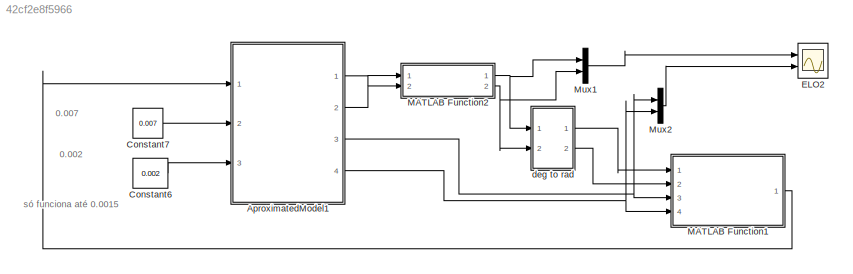
MODEL slx_42cf2e8f5966
KIND model
CONFIG AbsTol = auto
CONFIG EnableMultiTasking = off
CONFIG FixedStep = auto
CONFIG MaxStep = 0.001
CONFIG MinStep = auto
CONFIG RelTol = 1e-3
CONFIG SampleTimeConstraint = Unconstrained
CONFIG Solver = VariableStepAuto
CONFIG SolverName = VariableStepAuto
CONFIG StartTime = 0.0
CONFIG StopTime = 1
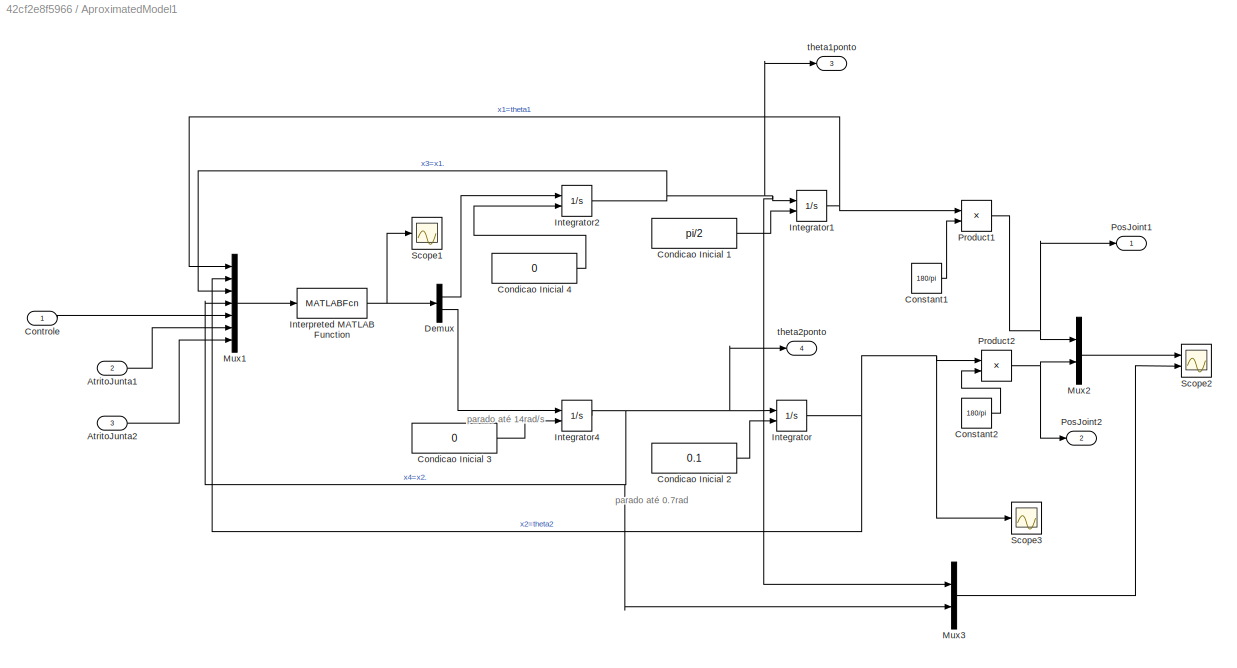
BLOCK [SubSystem] AproximatedModel1
  Ports = [3, 4]
  RequestExecContextInheritance = off
  Variant = off
BLOCK [Inport] AproximatedModel1/AtritoJunta1
  IconDisplay = Port number
  Port = 2
BLOCK [Inport] AproximatedModel1/AtritoJunta2
  IconDisplay = Port number
  Port = 3
BLOCK [Constant] AproximatedModel1/Condicao Inicial 1
  Value = pi/2
BLOCK [Constant] AproximatedModel1/Condicao Inicial 2
  Value = 0.1
BLOCK [Constant] AproximatedModel1/Condicao Inicial 3
  Value = 0
BLOCK [Constant] AproximatedModel1/Condicao Inicial 4
  Value = 0
BLOCK [Constant] AproximatedModel1/Constant1
  Value = 180/pi
BLOCK [Constant] AproximatedModel1/Constant2
  Value = 180/pi
BLOCK [Inport] AproximatedModel1/Controle
  IconDisplay = Port number
BLOCK [Demux] AproximatedModel1/Demux
  DisplayOption = bar
  Outputs = 2
  Ports = [1, 2]
BLOCK [Integrator] AproximatedModel1/Integrator
  InitialCondition = pi+1
  InitialConditionSource = external
  Ports = [2, 1]
BLOCK [Integrator] AproximatedModel1/Integrator1
  InitialConditionSource = external
  Ports = [2, 1]
BLOCK [Integrator] AproximatedModel1/Integrator2
  InitialCondition = -6
  InitialConditionSource = external
  Ports = [2, 1]
BLOCK [Integrator] AproximatedModel1/Integrator4
  InitialCondition = 12
  InitialConditionSource = external
  Ports = [2, 1]
BLOCK [MATLABFcn] AproximatedModel1/Interpreted MATLAB Function
  MATLABFcn = entradas3(u(1),u(2),u(3),u(4),u(5),u(6),u(7))
  OutputDimensions = 2
  OutputSignalType = real
  Ports = [1, 1]
BLOCK [Mux] AproximatedModel1/Mux1
  DisplayOption = bar
  Inputs = 7
  Ports = [7, 1]
BLOCK [Mux] AproximatedModel1/Mux2
  DisplayOption = bar
  Inputs = 2
  Ports = [2, 1]
BLOCK [Mux] AproximatedModel1/Mux3
  DisplayOption = bar
  Inputs = 2
  Ports = [2, 1]
BLOCK [Outport] AproximatedModel1/PosJoint1
  IconDisplay = Port number
BLOCK [Outport] AproximatedModel1/PosJoint2
  IconDisplay = Port number
  Port = 2
BLOCK [Product] AproximatedModel1/Product1
  InputSameDT = off
  OutDataTypeStr = Inherit: Inherit via internal rule
  Ports = [2, 1]
  RndMeth = Floor
  SaturateOnIntegerOverflow = off
BLOCK [Product] AproximatedModel1/Product2
  InputSameDT = off
  OutDataTypeStr = Inherit: Inherit via internal rule
  Ports = [2, 1]
  RndMeth = Floor
  SaturateOnIntegerOverflow = off
BLOCK [Scope] AproximatedModel1/Scope1
  NumInputPorts = 1
  Ports = [1]
  ScopeSpecificationString = C++SS(StrPVP('Location','[1, 76, 1357, 727]'),StrPVP('Open','off'),MxPVP('AxesTitles',53,'struct(''axes1'',''%<SignalLabel>'')'),MxPVP('ScopeGraphics',56,'struct(''FigureColor'',''[0.156862745098039 0.156862745098039 0.156862745098039]'',''AxesColor'',''[0 0 0]'',''AxesTickColor'',''[0.686274509803922 0.686274509803922 0.686274509803922]'',''LineColors'',''[1 1 0;1 0 1;0 1 1;1 0 0;0 1 0;0 0 1]'','...<+330ch>
BLOCK [Scope] AproximatedModel1/Scope2
  NumInputPorts = 2
  Ports = [2]
  ScopeSpecificationString = Simulink.scopes.TimeScopeBlockCfg('CurrentConfiguration', extmgr.ConfigurationSet(extmgr.Configuration('Core','General UI',true,'FigureColor',[1 1 1]),extmgr.Configuration('Core','Source UI',true),extmgr.Configuration('Sources','WiredSimulink',true,'DataLoggingVariableName','saidas','DataLoggingSaveFormat','Array','DataLoggingDecimation','1'),extmgr.Configuration('Visuals','Time Domain',true,'Seri...<+2966ch>
BLOCK [Scope] AproximatedModel1/Scope3
  NumInputPorts = 1
  Ports = [1]
  ScopeSpecificationString = Simulink.scopes.TimeScopeBlockCfg('CurrentConfiguration', extmgr.ConfigurationSet(extmgr.Configuration('Core','General UI',true,'FigureColor',[0.156862745098039 0.156862745098039 0.156862745098039]),extmgr.Configuration('Core','Source UI',true),extmgr.Configuration('Sources','WiredSimulink',true,'DataLogging',true,'DataLoggingVariableName','ScopeData2','DataLoggingSaveFormat','Array','DataLoggingD...<+3181ch>
BLOCK [Outport] AproximatedModel1/theta1ponto
  IconDisplay = Port number
  Port = 3
BLOCK [Outport] AproximatedModel1/theta2ponto
  IconDisplay = Port number
  Port = 4
BLOCK [Constant] Constant6
  Value = 0.002
BLOCK [Constant] Constant7
  Value = 0.007
BLOCK [Scope] ELO2
  NumInputPorts = 2
  Ports = [2]
  ScopeSpecificationString = Simulink.scopes.TimeScopeBlockCfg('CurrentConfiguration', extmgr.ConfigurationSet(extmgr.Configuration('Core','General UI',true),extmgr.Configuration('Core','Source UI',true),extmgr.Configuration('Sources','WiredSimulink',true,'DataLoggingVariableName','ScopeData1'),extmgr.Configuration('Visuals','Time Domain',true,'SerializedDisplays',{struct('MinYLimReal','-224.9872','MaxYLimReal','224.93357','Y...<+2591ch>
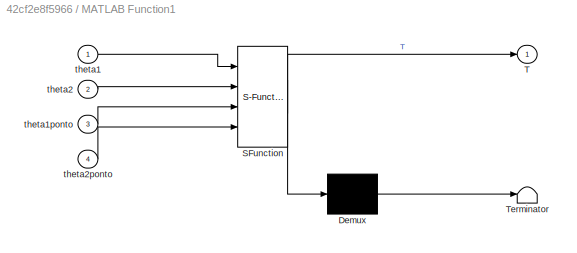
BLOCK [SubSystem] MATLAB Function1
  ErrorFcn = Stateflow.Translate.translate
  PermitHierarchicalResolution = ExplicitOnly
  Ports = [4, 1]
  RequestExecContextInheritance = off
  SFBlockType = MATLAB Function
  TreatAsAtomicUnit = on
  Variant = off
BLOCK [Demux] MATLAB Function1/ Demux 
  Outputs = 1
  Ports = [1, 1]
BLOCK [S-Function] MATLAB Function1/ SFunction 
  EnableBusSupport = on
  FunctionName = sf_sfun
  PortCounts = [4 2]
  Ports = [4, 2]
  SFcnIsStateOwnerBlock = off
  SFunctionDeploymentMode = off
  Tag = Stateflow S-Function teste_linearizado_apos_swing 1
BLOCK [Terminator] MATLAB Function1/ Terminator 
BLOCK [Outport] MATLAB Function1/T
  IconDisplay = Port number
BLOCK [Inport] MATLAB Function1/theta1
  IconDisplay = Port number
BLOCK [Inport] MATLAB Function1/theta1ponto
  IconDisplay = Port number
  Port = 3
BLOCK [Inport] MATLAB Function1/theta2
  IconDisplay = Port number
  Port = 2
BLOCK [Inport] MATLAB Function1/theta2ponto
  IconDisplay = Port number
  Port = 4
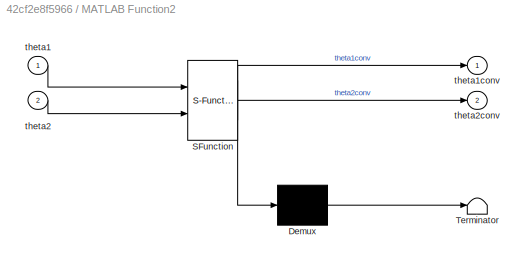
BLOCK [SubSystem] MATLAB Function2
  ErrorFcn = Stateflow.Translate.translate
  PermitHierarchicalResolution = ExplicitOnly
  Ports = [2, 2]
  RequestExecContextInheritance = off
  SFBlockType = MATLAB Function
  TreatAsAtomicUnit = on
  Variant = off
BLOCK [Demux] MATLAB Function2/ Demux 
  Outputs = 1
  Ports = [1, 1]
BLOCK [S-Function] MATLAB Function2/ SFunction 
  EnableBusSupport = on
  FunctionName = sf_sfun
  PortCounts = [2 3]
  Ports = [2, 3]
  SFcnIsStateOwnerBlock = off
  SFunctionDeploymentMode = off
  Tag = Stateflow S-Function teste_linearizado_apos_swing 3
BLOCK [Terminator] MATLAB Function2/ Terminator 
BLOCK [Inport] MATLAB Function2/theta1
  IconDisplay = Port number
BLOCK [Outport] MATLAB Function2/theta1conv
  IconDisplay = Port number
BLOCK [Inport] MATLAB Function2/theta2
  IconDisplay = Port number
  Port = 2
BLOCK [Outport] MATLAB Function2/theta2conv
  IconDisplay = Port number
  Port = 2
BLOCK [Mux] Mux1
  DisplayOption = bar
  Inputs = 2
  Ports = [2, 1]
BLOCK [Mux] Mux2
  DisplayOption = bar
  Inputs = 2
  Ports = [2, 1]
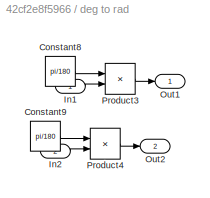
BLOCK [SubSystem] deg to rad
  Ports = [2, 2]
  RequestExecContextInheritance = off
  Variant = off
BLOCK [Constant] deg to rad/Constant8
  Value = pi/180
BLOCK [Constant] deg to rad/Constant9
  Value = pi/180
BLOCK [Inport] deg to rad/In1
  IconDisplay = Port number
BLOCK [Inport] deg to rad/In2
  IconDisplay = Port number
  Port = 2
BLOCK [Outport] deg to rad/Out1
  IconDisplay = Port number
BLOCK [Outport] deg to rad/Out2
  IconDisplay = Port number
  Port = 2
BLOCK [Product] deg to rad/Product3
  InputSameDT = off
  OutDataTypeStr = Inherit: Inherit via internal rule
  Ports = [2, 1]
  RndMeth = Floor
  SaturateOnIntegerOverflow = off
BLOCK [Product] deg to rad/Product4
  InputSameDT = off
  OutDataTypeStr = Inherit: Inherit via internal rule
  Ports = [2, 1]
  RndMeth = Floor
  SaturateOnIntegerOverflow = off
ANNOTATION (root): 0.002
ANNOTATION (root): 0.007
ANNOTATION (root): só funciona até 0.0015
ANNOTATION AproximatedModel1: parado até 0.7rad
ANNOTATION AproximatedModel1: parado até 14rad/s
LINE AproximatedModel1/AtritoJunta1:1 -> AproximatedModel1/Mux1:6
LINE AproximatedModel1/AtritoJunta2:1 -> AproximatedModel1/Mux1:7
LINE AproximatedModel1/Condicao Inicial 1:1 -> AproximatedModel1/Integrator1:2
LINE AproximatedModel1/Condicao Inicial 2:1 -> AproximatedModel1/Integrator:2
LINE AproximatedModel1/Condicao Inicial 3:1 -> AproximatedModel1/Integrator4:2
LINE AproximatedModel1/Condicao Inicial 4:1 -> AproximatedModel1/Integrator2:2
LINE AproximatedModel1/Constant1:1 -> AproximatedModel1/Product1:2
LINE AproximatedModel1/Constant2:1 -> AproximatedModel1/Product2:2
LINE AproximatedModel1/Controle:1 -> AproximatedModel1/Mux1:5
LINE AproximatedModel1/Demux:1 -> AproximatedModel1/Integrator2:1
LINE AproximatedModel1/Demux:2 -> AproximatedModel1/Integrator4:1
NET AproximatedModel1/Integrator1:1 -> AproximatedModel1/Mux1:1, AproximatedModel1/Product1:1
NET AproximatedModel1/Integrator2:1 -> AproximatedModel1/Integrator1:1, AproximatedModel1/Mux1:3, AproximatedModel1/Mux3:1, AproximatedModel1/theta1ponto:1
NET AproximatedModel1/Integrator4:1 -> AproximatedModel1/Integrator:1, AproximatedModel1/Mux1:4, AproximatedModel1/Mux3:2, AproximatedModel1/theta2ponto:1
NET AproximatedModel1/Integrator:1 -> AproximatedModel1/Mux1:2, AproximatedModel1/Product2:1, AproximatedModel1/Scope3:1
NET AproximatedModel1/Interpreted MATLAB Function:1 -> AproximatedModel1/Demux:1, AproximatedModel1/Scope1:1
LINE AproximatedModel1/Mux1:1 -> AproximatedModel1/Interpreted MATLAB Function:1
LINE AproximatedModel1/Mux2:1 -> AproximatedModel1/Scope2:1
LINE AproximatedModel1/Mux3:1 -> AproximatedModel1/Scope2:2
NET AproximatedModel1/Product1:1 -> AproximatedModel1/Mux2:1, AproximatedModel1/PosJoint1:1
NET AproximatedModel1/Product2:1 -> AproximatedModel1/Mux2:2, AproximatedModel1/PosJoint2:1
LINE AproximatedModel1:1 -> MATLAB Function2:1
LINE AproximatedModel1:2 -> MATLAB Function2:2
NET AproximatedModel1:3 -> MATLAB Function1:3, Mux2:1
NET AproximatedModel1:4 -> MATLAB Function1:4, Mux2:2
LINE Constant6:1 -> AproximatedModel1:3
LINE Constant7:1 -> AproximatedModel1:2
LINE MATLAB Function1:1 -> AproximatedModel1:1
NET MATLAB Function2:1 -> Mux1:1, deg to rad:1
NET MATLAB Function2:2 -> Mux1:2, deg to rad:2
LINE Mux1:1 -> ELO2:1
LINE Mux2:1 -> ELO2:2
LINE deg to rad/Constant8:1 -> deg to rad/Product3:1
LINE deg to rad/Constant9:1 -> deg to rad/Product4:1
LINE deg to rad/In1:1 -> deg to rad/Product3:2
LINE deg to rad/In2:1 -> deg to rad/Product4:2
LINE deg to rad/Product3:1 -> deg to rad/Out1:1
LINE deg to rad/Product4:1 -> deg to rad/Out2:1
LINE deg to rad:1 -> MATLAB Function1:1
LINE deg to rad:2 -> MATLAB Function1:2
note: NET lines group one-source signal fan-out (src -> all destinations, sorted); 1:1 wires keep LINE
CHART MATLAB Function1 states=1 transitions=1
  STATE_LABEL 'eML_blk_kernel()'
  STATE_LABEL 'SCRIPT:\nfunction T = controle_lin(theta1,theta2,theta1ponto,theta2ponto)\ng=9.81;\nm1=0.0555; \nm2=0.0416; \nL1=0.168;\nl1=0.0973; \nL2=0.140;\nl2=0.07;\nI1=1.97e-4;\nI2=9.58e-5;\n \n%% Matriz de Inércia\n\n m11=I1+I2+m1*l1^2+m2*(L1^2+l2^2+2*L1*l2*cos(theta2));\n m12=I2+m2*(l2^2+L1*l2*cos(theta2));\n m21=m12;\n m22=I2+m2*l2^2;\n\n %% Matriz correspondente as forças exercidas pela gravidade\n\nG = [(m1*l1+m2*L1)*g*cos...<+611ch>'
CHART MATLAB Function2 states=1 transitions=1
  STATE_LABEL 'eML_blk_kernel()'
  STATE_LABEL 'SCRIPT:\nfunction [theta1conv,theta2conv] = angle_convert(theta1,theta2)\ntheta1_360=mod(theta1,360);\nif theta1_360>180\n    theta1conv=theta1_360-360;  \nelse\n    theta1conv=theta1_360;\nend\ntheta2_360=mod(theta2,360);\nif theta2_360>180\n    theta2conv=theta2_360-360;  \nelse\n    theta2conv=theta2_360;\nend'
